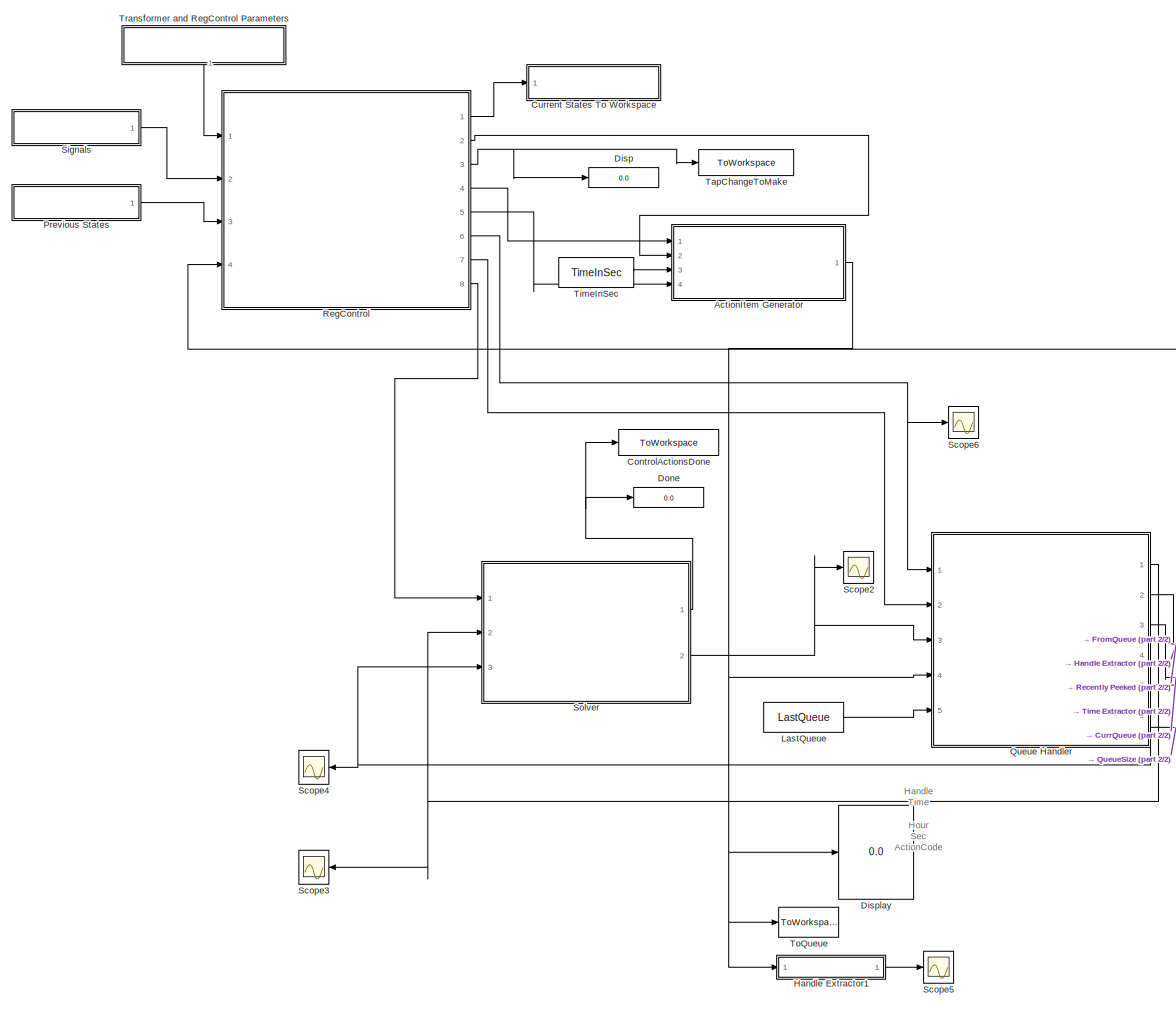
[diagram: root canvas - part 1/2, most of the canvas]
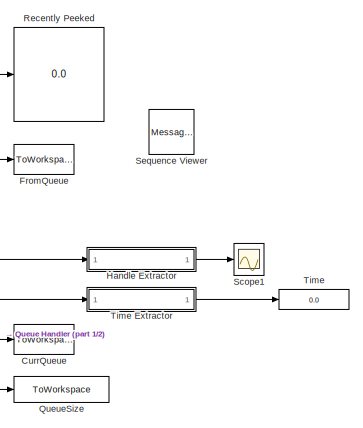
[diagram: root canvas - part 2/2, middle right region]
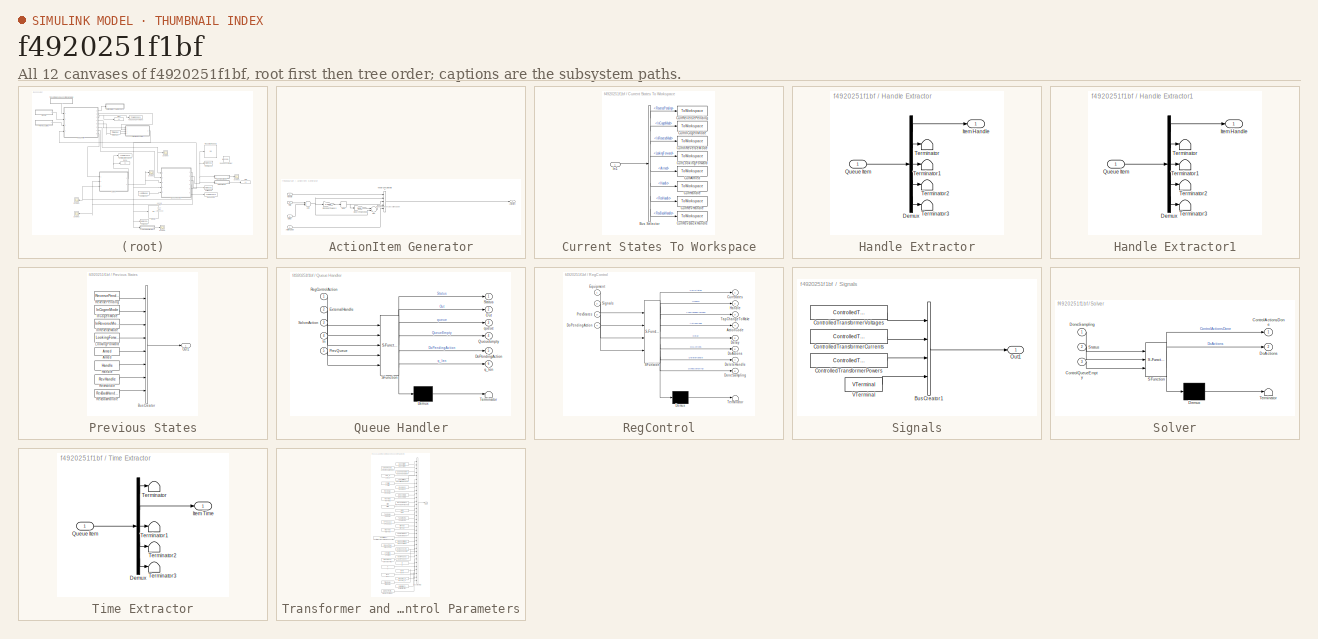
[diagram: thumbnail index - all 12 canvases of the model, root first then tree order]
MODEL slx_f4920251f1bf
KIND model
CONFIG AbsTol = auto
CONFIG EnableMultiTasking = off
CONFIG FixedStep = auto
CONFIG MaxStep = auto
CONFIG MinStep = auto
CONFIG RelTol = 1e-3
CONFIG SampleTimeConstraint = Unconstrained
CONFIG Solver = VariableStepDiscrete
CONFIG SolverName = VariableStepDiscrete
CONFIG StartTime = 0.0
CONFIG StopTime = 20.0
BLOCK [SubSystem] ActionItem Generator
  Ports = [4, 1]
  RequestExecContextInheritance = off
BLOCK [Inport] ActionItem Generator/ActionCode
  IconDisplay = Port number
BLOCK [Outport] ActionItem Generator/ActionItem
  IconDisplay = Port number
BLOCK [Sum] ActionItem Generator/Add
  InputSameDT = off
  OutDataTypeStr = Inherit: Inherit via internal rule
  Ports = [2, 1]
  SaturateOnIntegerOverflow = off
BLOCK [Inport] ActionItem Generator/Delay
  IconDisplay = Port number
  Port = 4
BLOCK [Inport] ActionItem Generator/Handle
  IconDisplay = Port number
  Port = 2
BLOCK [Rounding] ActionItem Generator/Hour
BLOCK [Gain] ActionItem Generator/HoursToSeconds
  Gain = 3600
  OutDataTypeStr = Inherit: Inherit via internal rule
  ParamDataTypeStr = Inherit: Inherit via internal rule
  SaturateOnIntegerOverflow = off
BLOCK [Sum] ActionItem Generator/Sec
  InputSameDT = off
  Inputs = -+
  OutDataTypeStr = Inherit: Inherit via internal rule
  Ports = [2, 1]
  SaturateOnIntegerOverflow = off
BLOCK [Gain] ActionItem Generator/SecondsToHours
  Gain = 1/3600
  OutDataTypeStr = Inherit: Inherit via internal rule
  ParamDataTypeStr = Inherit: Inherit via internal rule
  SaturateOnIntegerOverflow = off
BLOCK [Inport] ActionItem Generator/Time
  IconDisplay = Port number
  Port = 3
BLOCK [Concatenate] ActionItem Generator/Vector Concatenate1
  NumInputs = 5
  Ports = [5, 1]
BLOCK [ToWorkspace] ControlActionsDone
  FixptAsFi = on
  MaxDataPoints = inf
  Ports = [1]
  SampleTime = -1
  Save2DSignal = 3-D array (concatenate along third dimension)
  SaveFormat = Timeseries
  VariableName = ControlActionsDone
BLOCK [ToWorkspace] CurrQueue
  FixptAsFi = on
  MaxDataPoints = inf
  Ports = [1]
  SampleTime = 1
  Save2DSignal = 3-D array (concatenate along third dimension)
  SaveFormat = Structure With Time
  VariableName = CurrQueue
BLOCK [SubSystem] Current States To Workspace
  Ports = [1]
  RequestExecContextInheritance = off
BLOCK [BusSelector] Current States To Workspace/Bus Selector
  OutputAsBus = off
  OutputSignals = ReversePending,InCogenMode,InReverseMode,LookingForward,Armed,Handle,RevHandle,RevBackHandle
  Ports = [1, 8]
BLOCK [ToWorkspace] Current States To Workspace/CurrArmed
  FixptAsFi = on
  MaxDataPoints = 1
  Ports = [1]
  SampleTime = -1
  Save2DSignal = 3-D array (concatenate along third dimension)
  SaveFormat = Timeseries
  VariableName = CurrArmed
BLOCK [ToWorkspace] Current States To Workspace/CurrHandle
  FixptAsFi = on
  MaxDataPoints = 1
  Ports = [1]
  SampleTime = -1
  Save2DSignal = 3-D array (concatenate along third dimension)
  SaveFormat = Timeseries
  VariableName = CurrHandle
BLOCK [ToWorkspace] Current States To Workspace/CurrInCogenMode
  FixptAsFi = on
  MaxDataPoints = 1
  Ports = [1]
  SampleTime = -1
  Save2DSignal = 3-D array (concatenate along third dimension)
  SaveFormat = Timeseries
  VariableName = CurrInCogenMode
BLOCK [ToWorkspace] Current States To Workspace/CurrInReverseMode
  FixptAsFi = on
  MaxDataPoints = 1
  Ports = [1]
  SampleTime = -1
  Save2DSignal = 3-D array (concatenate along third dimension)
  SaveFormat = Timeseries
  VariableName = CurrInReverseMode
BLOCK [ToWorkspace] Current States To Workspace/CurrLookingForward
  FixptAsFi = on
  MaxDataPoints = 1
  Ports = [1]
  SampleTime = -1
  Save2DSignal = 3-D array (concatenate along third dimension)
  SaveFormat = Timeseries
  VariableName = CurrLookingForward
BLOCK [ToWorkspace] Current States To Workspace/CurrRevBackHandle
  FixptAsFi = on
  MaxDataPoints = 1
  Ports = [1]
  SampleTime = -1
  Save2DSignal = 3-D array (concatenate along third dimension)
  SaveFormat = Timeseries
  VariableName = CurrRevBackHandle
BLOCK [ToWorkspace] Current States To Workspace/CurrRevHandle
  FixptAsFi = on
  MaxDataPoints = 1
  Ports = [1]
  SampleTime = -1
  Save2DSignal = 3-D array (concatenate along third dimension)
  SaveFormat = Timeseries
  VariableName = CurrRevHandle
BLOCK [ToWorkspace] Current States To Workspace/CurrReversePending
  FixptAsFi = on
  MaxDataPoints = 1
  Ports = [1]
  SampleTime = -1
  Save2DSignal = 3-D array (concatenate along third dimension)
  SaveFormat = Timeseries
  VariableName = CurrReversePending
BLOCK [Inport] Current States To Workspace/In1
  IconDisplay = Port number
BLOCK [Display] Disp
  Decimation = 1
  Ports = [1]
BLOCK [Display] Display
  Decimation = 1
  Ports = [1]
BLOCK [Display] Done
  Decimation = 1
  Ports = [1]
BLOCK [ToWorkspace] FromQueue
  FixptAsFi = on
  MaxDataPoints = inf
  Ports = [1]
  SampleTime = 1
  Save2DSignal = 3-D array (concatenate along third dimension)
  SaveFormat = Structure With Time
  VariableName = FromQueue
BLOCK [SubSystem] Handle Extractor
  Ports = [1, 1]
  RequestExecContextInheritance = off
BLOCK [Demux] Handle Extractor/Demux
  DisplayOption = bar
  Outputs = 5
  Ports = [1, 5]
BLOCK [Outport] Handle Extractor/Item Handle
  IconDisplay = Port number
BLOCK [Inport] Handle Extractor/Queue Item
  IconDisplay = Port number
BLOCK [Terminator] Handle Extractor/Terminator
BLOCK [Terminator] Handle Extractor/Terminator1
BLOCK [Terminator] Handle Extractor/Terminator2
BLOCK [Terminator] Handle Extractor/Terminator3
BLOCK [SubSystem] Handle Extractor1
  Ports = [1, 1]
  RequestExecContextInheritance = off
BLOCK [Demux] Handle Extractor1/Demux
  DisplayOption = bar
  Outputs = 5
  Ports = [1, 5]
BLOCK [Outport] Handle Extractor1/Item Handle
  IconDisplay = Port number
BLOCK [Inport] Handle Extractor1/Queue Item
  IconDisplay = Port number
BLOCK [Terminator] Handle Extractor1/Terminator
BLOCK [Terminator] Handle Extractor1/Terminator1
BLOCK [Terminator] Handle Extractor1/Terminator2
BLOCK [Terminator] Handle Extractor1/Terminator3
BLOCK [Constant] LastQueue
  OutDataTypeStr = double
  Value = LastQueue
  VectorParams1D = off
BLOCK [SubSystem] Previous States
  Ports = [0, 1]
  RequestExecContextInheritance = off
BLOCK [Constant] Previous States/Armed
  Value = Armed
BLOCK [BusCreator] Previous States/Bus Creator
  DisplayOption = bar
  InheritFromInputs = off
  Inputs = 8
  OutDataTypeStr = Bus: StatesBus
  Ports = [8, 1]
BLOCK [Constant] Previous States/Handle
  Value = Handle
BLOCK [Constant] Previous States/InCogenMode
  Value = InCogenMode
BLOCK [Constant] Previous States/InReverseMode
  Value = InReverseMode
BLOCK [Constant] Previous States/LookingForward
  Value = LookingForward
BLOCK [Outport] Previous States/Out1
  IconDisplay = Port number
BLOCK [Constant] Previous States/RevBackHandle
  Value = RevBackHandle
BLOCK [Constant] Previous States/RevHandle
  Value = RevHandle
BLOCK [Constant] Previous States/ReversePending
  Value = ReversePending
BLOCK [SubSystem] Queue Handler
  ErrorFcn = Stateflow.Translate.translate
  PermitHierarchicalResolution = ExplicitOnly
  Ports = [5, 6]
  RequestExecContextInheritance = off
  SFBlockType = Chart
  TreatAsAtomicUnit = on
BLOCK [Demux] Queue Handler/ Demux 
  Outputs = 1
  Ports = [1, 1]
BLOCK [S-Function] Queue Handler/ SFunction 
  EnableBusSupport = on
  FunctionName = sf_sfun
  InputPortMessageModes = m,n,m,n,n
  OutputPortMessageModes = n,m,n,n,m,m,n
  Parameters = 0,1,2,5,false,false;
  PortCounts = [5 7]
  Ports = [5, 7]
  SFcnIsStateOwnerBlock = off
  SFunctionDeploymentMode = off
  Tag = Stateflow S-Function regcontrol_1ph 5
BLOCK [Terminator] Queue Handler/ Terminator 
BLOCK [Outport] Queue Handler/DoPendingAction
  IconDisplay = Port number
  Port = 5
BLOCK [Inport] Queue Handler/ExternalHandle
  IconDisplay = Port number
  Port = 2
BLOCK [Inport] Queue Handler/In
  IconDisplay = Port number
  Port = 4
BLOCK [Outport] Queue Handler/Out
  IconDisplay = Port number
  Port = 2
BLOCK [Inport] Queue Handler/PrevQueue
  IconDisplay = Port number
  Port = 5
BLOCK [Outport] Queue Handler/QueueEmpty
  IconDisplay = Port number
  Port = 4
BLOCK [Inport] Queue Handler/RegControlAction
  IconDisplay = Port number
BLOCK [Inport] Queue Handler/SolverAction
  IconDisplay = Port number
  Port = 3
BLOCK [Outport] Queue Handler/Status
  IconDisplay = Port number
BLOCK [Outport] Queue Handler/q_len
  IconDisplay = Port number
  Port = 6
BLOCK [Outport] Queue Handler/queue
  IconDisplay = Port number
  Port = 3
BLOCK [ToWorkspace] QueueSize
  FixptAsFi = on
  MaxDataPoints = 1
  Ports = [1]
  SampleTime = -1
  Save2DSignal = 3-D array (concatenate along third dimension)
  SaveFormat = Timeseries
  VariableName = QueueSize
BLOCK [Display] Recently Peeked
  Decimation = 1
  Ports = [1]
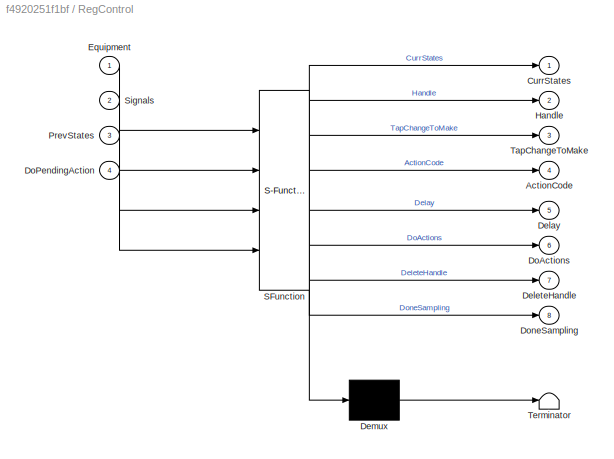
BLOCK [SubSystem] RegControl
  ErrorFcn = Stateflow.Translate.translate
  PermitHierarchicalResolution = ExplicitOnly
  Ports = [4, 8]
  RequestExecContextInheritance = off
  SFBlockType = Chart
  TreatAsAtomicUnit = on
BLOCK [Demux] RegControl/ Demux 
  Outputs = 1
  Ports = [1, 1]
BLOCK [S-Function] RegControl/ SFunction 
  EnableBusSupport = on
  FunctionName = sf_sfun
  InputPortMessageModes = n,n,n,m
  OutputPortMessageModes = n,n,n,n,n,n,m,n,m
  Parameters = 0,1.0e-12,120,3,60,BaseVoltage,complex(0),false,true,uint8(1),uint8(16)
  PortCounts = [4 9]
  Ports = [4, 9]
  SFcnIsStateOwnerBlock = off
  SFunctionDeploymentMode = off
  Tag = Stateflow S-Function regcontrol_1ph 1
BLOCK [Terminator] RegControl/ Terminator 
BLOCK [Outport] RegControl/ActionCode
  IconDisplay = Port number
  Port = 4
BLOCK [Outport] RegControl/CurrStates
  IconDisplay = Port number
BLOCK [Outport] RegControl/Delay
  IconDisplay = Port number
  Port = 5
BLOCK [Outport] RegControl/DeleteHandle
  IconDisplay = Port number
  Port = 7
BLOCK [Outport] RegControl/DoActions
  IconDisplay = Port number
  Port = 6
BLOCK [Inport] RegControl/DoPendingAction
  IconDisplay = Port number
  Port = 4
BLOCK [Outport] RegControl/DoneSampling
  IconDisplay = Port number
  Port = 8
BLOCK [Inport] RegControl/Equipment
  IconDisplay = Port number
BLOCK [Outport] RegControl/Handle
  IconDisplay = Port number
  Port = 2
BLOCK [Inport] RegControl/PrevStates
  IconDisplay = Port number
  Port = 3
BLOCK [Inport] RegControl/Signals
  IconDisplay = Port number
  Port = 2
BLOCK [Outport] RegControl/TapChangeToMake
  IconDisplay = Port number
  Port = 3
BLOCK [Scope] Scope1
  Floating = off
  NumInputPorts = 1
  Ports = [1]
  ScopeSpecificationString = Simulink.scopes.TimeScopeBlockCfg('CurrentConfiguration', extmgr.ConfigurationSet(extmgr.Configuration('Core','General UI',true),extmgr.Configuration('Core','Source UI',true),extmgr.Configuration('Sources','WiredSimulink',true,'DataLoggingVariableName','ScopeData2'),extmgr.Configuration('Visuals','Time Domain',true,'SerializedDisplays',{struct('MinYLimReal','-1.00000','MaxYLimReal','1.00000','YLab...<+1403ch>
BLOCK [Scope] Scope2
  Floating = off
  NumInputPorts = 1
  Ports = [1]
  ScopeSpecificationString = Simulink.scopes.TimeScopeBlockCfg('CurrentConfiguration', extmgr.ConfigurationSet(extmgr.Configuration('Core','General UI',true),extmgr.Configuration('Core','Source UI',true),extmgr.Configuration('Sources','WiredSimulink',true,'DataLoggingVariableName','ScopeData3'),extmgr.Configuration('Visuals','Time Domain',true,'SerializedDisplays',{struct('MinYLimReal','-0.875','MaxYLimReal','7.875','YLabelRe...<+1416ch>
BLOCK [Scope] Scope3
  Floating = off
  NumInputPorts = 1
  Ports = [1]
  ScopeSpecificationString = Simulink.scopes.TimeScopeBlockCfg('CurrentConfiguration', extmgr.ConfigurationSet(extmgr.Configuration('Core','General UI',true),extmgr.Configuration('Core','Source UI',true),extmgr.Configuration('Sources','WiredSimulink',true,'DataLoggingVariableName','ScopeData1'),extmgr.Configuration('Visuals','Time Domain',true,'SerializedDisplays',{struct('MinYLimReal','-0.25','MaxYLimReal','2.25','YLabelReal...<+1419ch>
BLOCK [Scope] Scope4
  Floating = off
  NumInputPorts = 1
  Ports = [1]
  ScopeSpecificationString = Simulink.scopes.TimeScopeBlockCfg('CurrentConfiguration', extmgr.ConfigurationSet(extmgr.Configuration('Core','General UI',true),extmgr.Configuration('Core','Source UI',true),extmgr.Configuration('Sources','WiredSimulink',true,'DataLoggingVariableName','ScopeData2'),extmgr.Configuration('Visuals','Time Domain',true,'SerializedDisplays',{struct('MinYLimReal','-0.875','MaxYLimReal','7.875','YLabelRe...<+1422ch>
BLOCK [Scope] Scope5
  Floating = off
  NumInputPorts = 1
  Ports = [1]
  ScopeSpecificationString = Simulink.scopes.TimeScopeBlockCfg('CurrentConfiguration', extmgr.ConfigurationSet(extmgr.Configuration('Core','General UI',true),extmgr.Configuration('Core','Source UI',true),extmgr.Configuration('Sources','WiredSimulink',true,'DataLoggingVariableName','ScopeData1'),extmgr.Configuration('Visuals','Time Domain',true,'SerializedDisplays',{struct('MinYLimReal','0.9','MaxYLimReal','1.1','YLabelReal','...<+1370ch>
BLOCK [Scope] Scope6
  Floating = off
  NumInputPorts = 1
  Ports = [1]
  ScopeSpecificationString = Simulink.scopes.TimeScopeBlockCfg('CurrentConfiguration', extmgr.ConfigurationSet(extmgr.Configuration('Core','General UI',true),extmgr.Configuration('Core','Source UI',true),extmgr.Configuration('Sources','WiredSimulink',true,'DataLoggingVariableName','ScopeData1'),extmgr.Configuration('Visuals','Time Domain',true,'SerializedDisplays',{struct('MinYLimReal','-0.125','MaxYLimReal','1.125','YLabelRe...<+1419ch>
BLOCK [MessageViewer] Sequence Viewer
BLOCK [SubSystem] Signals
  Ports = [0, 1]
  RequestExecContextInheritance = off
BLOCK [BusCreator] Signals/Bus Creator1
  DisplayOption = bar
  InheritFromInputs = off
  Inputs = 4
  OutDataTypeStr = Bus: SignalBus
  Ports = [4, 1]
BLOCK [Constant] Signals/ControlledTransformerCurrents
  Value = ControlledTransformerCurrents
BLOCK [Constant] Signals/ControlledTransformerPowers
  Value = ControlledTransformerPowers
BLOCK [Constant] Signals/ControlledTransformerVoltages
  Value = ControlledTransformerVoltages
BLOCK [Outport] Signals/Out1
  IconDisplay = Port number
BLOCK [Constant] Signals/VTerminal
  Value = VTerminal
BLOCK [SubSystem] Solver
  ErrorFcn = Stateflow.Translate.translate
  PermitHierarchicalResolution = ExplicitOnly
  Ports = [3, 2]
  RequestExecContextInheritance = off
  SFBlockType = Chart
  TreatAsAtomicUnit = on
BLOCK [Demux] Solver/ Demux 
  Outputs = 1
  Ports = [1, 1]
BLOCK [S-Function] Solver/ SFunction 
  EnableBusSupport = on
  FunctionName = sf_sfun
  InputPortMessageModes = m,m,m
  OutputPortMessageModes = n,n,m
  Parameters = false
  PortCounts = [3 3]
  Ports = [3, 3]
  SFcnIsStateOwnerBlock = off
  SFunctionDeploymentMode = off
  Tag = Stateflow S-Function regcontrol_1ph 3
BLOCK [Terminator] Solver/ Terminator 
BLOCK [Outport] Solver/ControlActionsDone
  IconDisplay = Port number
BLOCK [Inport] Solver/ControlQueueEmpty
  IconDisplay = Port number
  Port = 3
BLOCK [Outport] Solver/DoActions
  IconDisplay = Port number
  Port = 2
BLOCK [Inport] Solver/DoneSampling
  IconDisplay = Port number
BLOCK [Inport] Solver/Status
  IconDisplay = Port number
  Port = 2
BLOCK [ToWorkspace] TapChangeToMake
  FixptAsFi = on
  MaxDataPoints = 1
  Ports = [1]
  SampleTime = -1
  Save2DSignal = 3-D array (concatenate along third dimension)
  SaveFormat = Timeseries
  VariableName = TapChangeToMake
BLOCK [Display] Time
  Decimation = 1
  Ports = [1]
BLOCK [SubSystem] Time Extractor
  Ports = [1, 1]
  RequestExecContextInheritance = off
BLOCK [Demux] Time Extractor/Demux
  DisplayOption = bar
  Outputs = 5
  Ports = [1, 5]
BLOCK [Outport] Time Extractor/Item Time
  IconDisplay = Port number
BLOCK [Inport] Time Extractor/Queue Item
  IconDisplay = Port number
BLOCK [Terminator] Time Extractor/Terminator
BLOCK [Terminator] Time Extractor/Terminator1
BLOCK [Terminator] Time Extractor/Terminator2
BLOCK [Terminator] Time Extractor/Terminator3
BLOCK [Constant] TimeInSec
  OutDataTypeStr = double
  Value = TimeInSec
BLOCK [ToWorkspace] ToQueue
  FixptAsFi = on
  MaxDataPoints = 1
  Ports = [1]
  SampleTime = 1
  Save2DSignal = 3-D array (concatenate along third dimension)
  SaveFormat = Structure With Time
  VariableName = ToQueue
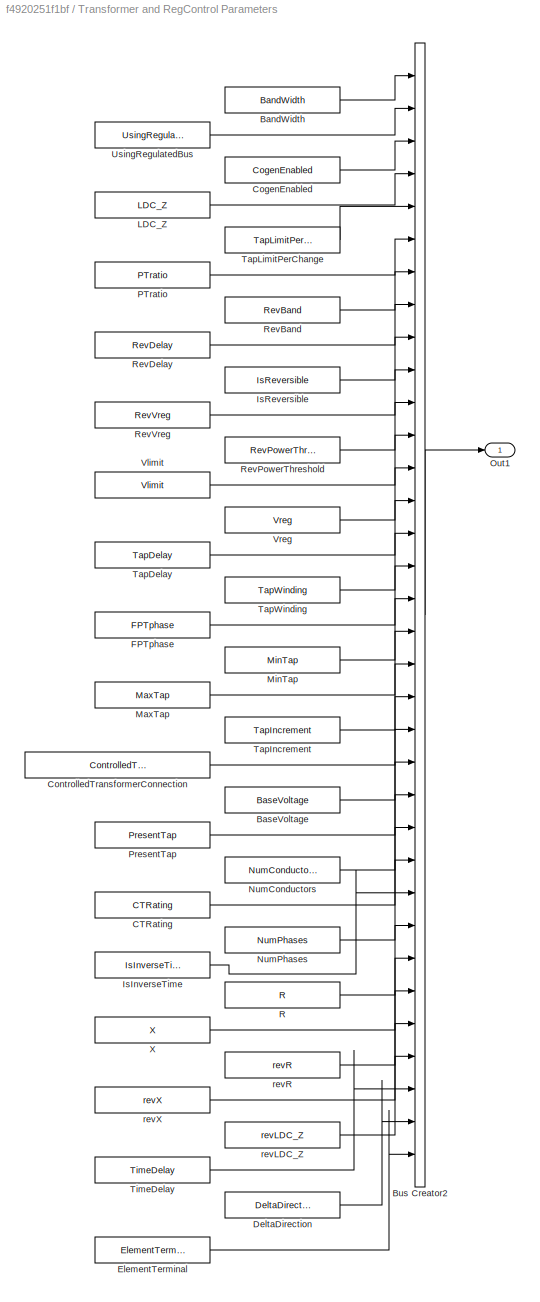
BLOCK [SubSystem] Transformer and RegControl Parameters
  Ports = [0, 1]
  RequestExecContextInheritance = off
BLOCK [Constant] Transformer and RegControl Parameters/BandWidth
  Value = BandWidth
BLOCK [Constant] Transformer and RegControl Parameters/BaseVoltage
  Value = BaseVoltage
BLOCK [BusCreator] Transformer and RegControl Parameters/Bus Creator2
  DisplayOption = bar
  InheritFromInputs = off
  Inputs = 34
  OutDataTypeStr = Bus: EquipmentBus
  Ports = [34, 1]
BLOCK [Constant] Transformer and RegControl Parameters/CTRating
  Value = CTRating
BLOCK [Constant] Transformer and RegControl Parameters/CogenEnabled
  Value = CogenEnabled
BLOCK [Constant] Transformer and RegControl Parameters/ControlledTransformerConnection
  Value = ControlledTransformerConnection
BLOCK [Constant] Transformer and RegControl Parameters/DeltaDirection
  Value = DeltaDirection
BLOCK [Constant] Transformer and RegControl Parameters/ElementTerminal
  Value = ElementTerminal
BLOCK [Constant] Transformer and RegControl Parameters/FPTphase
  Value = FPTphase
BLOCK [Constant] Transformer and RegControl Parameters/IsInverseTime
  Value = IsInverseTime
BLOCK [Constant] Transformer and RegControl Parameters/IsReversible
  Value = IsReversible
BLOCK [Constant] Transformer and RegControl Parameters/LDC_Z
  Value = LDC_Z
BLOCK [Constant] Transformer and RegControl Parameters/MaxTap
  Value = MaxTap
BLOCK [Constant] Transformer and RegControl Parameters/MinTap
  Value = MinTap
BLOCK [Constant] Transformer and RegControl Parameters/NumConductors
  Value = NumConductors
BLOCK [Constant] Transformer and RegControl Parameters/NumPhases
  Value = NumPhases
BLOCK [Outport] Transformer and RegControl Parameters/Out1
  IconDisplay = Port number
BLOCK [Constant] Transformer and RegControl Parameters/PTratio
  Value = PTratio
BLOCK [Constant] Transformer and RegControl Parameters/PresentTap
  Value = PresentTap
BLOCK [Constant] Transformer and RegControl Parameters/R
  Value = R
BLOCK [Constant] Transformer and RegControl Parameters/RevBand
  Value = RevBand
BLOCK [Constant] Transformer and RegControl Parameters/RevDelay
  Value = RevDelay
BLOCK [Constant] Transformer and RegControl Parameters/RevPowerThreshold
  Value = RevPowerThreshold
BLOCK [Constant] Transformer and RegControl Parameters/RevVreg
  Value = RevVreg
BLOCK [Constant] Transformer and RegControl Parameters/TapDelay
  Value = TapDelay
BLOCK [Constant] Transformer and RegControl Parameters/TapIncrement
  Value = TapIncrement
BLOCK [Constant] Transformer and RegControl Parameters/TapLimitPerChange
  Value = TapLimitPerChange
BLOCK [Constant] Transformer and RegControl Parameters/TapWinding
  Value = TapWinding
BLOCK [Constant] Transformer and RegControl Parameters/TimeDelay
  Value = TimeDelay
BLOCK [Constant] Transformer and RegControl Parameters/UsingRegulatedBus
  Value = UsingRegulatedBus
BLOCK [Constant] Transformer and RegControl Parameters/Vlimit
  Value = Vlimit
BLOCK [Constant] Transformer and RegControl Parameters/Vreg
  Value = Vreg
BLOCK [Constant] Transformer and RegControl Parameters/X
  Value = X
BLOCK [Constant] Transformer and RegControl Parameters/revLDC_Z
  Value = revLDC_Z
BLOCK [Constant] Transformer and RegControl Parameters/revR
  Value = revR
BLOCK [Constant] Transformer and RegControl Parameters/revX
  Value = revX
ANNOTATION (root): Handle Time Hour Sec ActionCode
ANNOTATION ActionItem Generator: [Handle Time Hour Sec ActionCode]'
LINE ActionItem Generator/ActionCode:1 -> ActionItem Generator/Vector Concatenate1:5
NET ActionItem Generator/Add:1 -> ActionItem Generator/Sec:2, ActionItem Generator/SecondsToHours:1, ActionItem Generator/Vector Concatenate1:2
LINE ActionItem Generator/Delay:1 -> ActionItem Generator/Add:2
LINE ActionItem Generator/Handle:1 -> ActionItem Generator/Vector Concatenate1:1
NET ActionItem Generator/Hour:1 -> ActionItem Generator/HoursToSeconds:1, ActionItem Generator/Vector Concatenate1:3
LINE ActionItem Generator/HoursToSeconds:1 -> ActionItem Generator/Sec:1
LINE ActionItem Generator/Sec:1 -> ActionItem Generator/Vector Concatenate1:4
LINE ActionItem Generator/SecondsToHours:1 -> ActionItem Generator/Hour:1
LINE ActionItem Generator/Time:1 -> ActionItem Generator/Add:1
LINE ActionItem Generator/Vector Concatenate1:1 -> ActionItem Generator/ActionItem:1
NET ActionItem Generator:1 -> Display:1, Handle Extractor1:1, Queue Handler:4, ToQueue:1
LINE Current States To Workspace/Bus Selector:1 -> Current States To Workspace/CurrReversePending:1
LINE Current States To Workspace/Bus Selector:2 -> Current States To Workspace/CurrInCogenMode:1
LINE Current States To Workspace/Bus Selector:3 -> Current States To Workspace/CurrInReverseMode:1
LINE Current States To Workspace/Bus Selector:4 -> Current States To Workspace/CurrLookingForward:1
LINE Current States To Workspace/Bus Selector:5 -> Current States To Workspace/CurrArmed:1
LINE Current States To Workspace/Bus Selector:6 -> Current States To Workspace/CurrHandle:1
LINE Current States To Workspace/Bus Selector:7 -> Current States To Workspace/CurrRevHandle:1
LINE Current States To Workspace/Bus Selector:8 -> Current States To Workspace/CurrRevBackHandle:1
LINE Current States To Workspace/In1:1 -> Current States To Workspace/Bus Selector:1
LINE Handle Extractor/Demux:1 -> Handle Extractor/Item Handle:1
LINE Handle Extractor/Demux:2 -> Handle Extractor/Terminator:1
LINE Handle Extractor/Demux:3 -> Handle Extractor/Terminator1:1
LINE Handle Extractor/Demux:4 -> Handle Extractor/Terminator2:1
LINE Handle Extractor/Demux:5 -> Handle Extractor/Terminator3:1
LINE Handle Extractor/Queue Item:1 -> Handle Extractor/Demux:1
LINE Handle Extractor1/Demux:1 -> Handle Extractor1/Item Handle:1
LINE Handle Extractor1/Demux:2 -> Handle Extractor1/Terminator:1
LINE Handle Extractor1/Demux:3 -> Handle Extractor1/Terminator1:1
LINE Handle Extractor1/Demux:4 -> Handle Extractor1/Terminator2:1
LINE Handle Extractor1/Demux:5 -> Handle Extractor1/Terminator3:1
LINE Handle Extractor1/Queue Item:1 -> Handle Extractor1/Demux:1
LINE Handle Extractor1:1 -> Scope5:1
LINE Handle Extractor:1 -> Scope1:1
LINE LastQueue:1 -> Queue Handler:5
LINE Previous States/Armed:1 -> Previous States/Bus Creator:5
LINE Previous States/Bus Creator:1 -> Previous States/Out1:1
LINE Previous States/Handle:1 -> Previous States/Bus Creator:6
LINE Previous States/InCogenMode:1 -> Previous States/Bus Creator:2
LINE Previous States/InReverseMode:1 -> Previous States/Bus Creator:3
LINE Previous States/LookingForward:1 -> Previous States/Bus Creator:4
LINE Previous States/RevBackHandle:1 -> Previous States/Bus Creator:8
LINE Previous States/RevHandle:1 -> Previous States/Bus Creator:7
LINE Previous States/ReversePending:1 -> Previous States/Bus Creator:1
LINE Previous States:1 -> RegControl:3
NET Queue Handler:1 -> Scope3:1, Solver:2
NET Queue Handler:2 -> FromQueue:1, Handle Extractor:1, Recently Peeked:1, Time Extractor:1
LINE Queue Handler:3 -> CurrQueue:1
NET Queue Handler:4 -> Scope4:1, Solver:3
LINE Queue Handler:5 -> RegControl:4
LINE Queue Handler:6 -> QueueSize:1
LINE RegControl:1 -> Current States To Workspace:1
LINE RegControl:2 -> ActionItem Generator:2
NET RegControl:3 -> Disp:1, TapChangeToMake:1
LINE RegControl:4 -> ActionItem Generator:1
LINE RegControl:5 -> ActionItem Generator:4
NET RegControl:6 -> Queue Handler:1, Scope6:1
LINE RegControl:7 -> Queue Handler:2
LINE RegControl:8 -> Solver:1
LINE Signals/Bus Creator1:1 -> Signals/Out1:1
LINE Signals/ControlledTransformerCurrents:1 -> Signals/Bus Creator1:2
LINE Signals/ControlledTransformerPowers:1 -> Signals/Bus Creator1:3
LINE Signals/ControlledTransformerVoltages:1 -> Signals/Bus Creator1:1
LINE Signals/VTerminal:1 -> Signals/Bus Creator1:4
LINE Signals:1 -> RegControl:2
NET Solver:1 -> ControlActionsDone:1, Done:1
NET Solver:2 -> Queue Handler:3, Scope2:1
LINE Time Extractor/Demux:1 -> Time Extractor/Terminator:1
LINE Time Extractor/Demux:2 -> Time Extractor/Item Time:1
LINE Time Extractor/Demux:3 -> Time Extractor/Terminator1:1
LINE Time Extractor/Demux:4 -> Time Extractor/Terminator2:1
LINE Time Extractor/Demux:5 -> Time Extractor/Terminator3:1
LINE Time Extractor/Queue Item:1 -> Time Extractor/Demux:1
LINE Time Extractor:1 -> Time:1
LINE TimeInSec:1 -> ActionItem Generator:3
LINE Transformer and RegControl Parameters/BandWidth:1 -> Transformer and RegControl Parameters/Bus Creator2:1
LINE Transformer and RegControl Parameters/BaseVoltage:1 -> Transformer and RegControl Parameters/Bus Creator2:21
LINE Transformer and RegControl Parameters/Bus Creator2:1 -> Transformer and RegControl Parameters/Out1:1
LINE Transformer and RegControl Parameters/CTRating:1 -> Transformer and RegControl Parameters/Bus Creator2:24
LINE Transformer and RegControl Parameters/CogenEnabled:1 -> Transformer and RegControl Parameters/Bus Creator2:3
LINE Transformer and RegControl Parameters/ControlledTransformerConnection:1 -> Transformer and RegControl Parameters/Bus Creator2:20
LINE Transformer and RegControl Parameters/DeltaDirection:1 -> Transformer and RegControl Parameters/Bus Creator2:33
LINE Transformer and RegControl Parameters/ElementTerminal:1 -> Transformer and RegControl Parameters/Bus Creator2:34
LINE Transformer and RegControl Parameters/FPTphase:1 -> Transformer and RegControl Parameters/Bus Creator2:16
LINE Transformer and RegControl Parameters/IsInverseTime:1 -> Transformer and RegControl Parameters/Bus Creator2:26
LINE Transformer and RegControl Parameters/IsReversible:1 -> Transformer and RegControl Parameters/Bus Creator2:9
LINE Transformer and RegControl Parameters/LDC_Z:1 -> Transformer and RegControl Parameters/Bus Creator2:4
LINE Transformer and RegControl Parameters/MaxTap:1 -> Transformer and RegControl Parameters/Bus Creator2:18
LINE Transformer and RegControl Parameters/MinTap:1 -> Transformer and RegControl Parameters/Bus Creator2:17
LINE Transformer and RegControl Parameters/NumConductors:1 -> Transformer and RegControl Parameters/Bus Creator2:23
LINE Transformer and RegControl Parameters/NumPhases:1 -> Transformer and RegControl Parameters/Bus Creator2:25
LINE Transformer and RegControl Parameters/PTratio:1 -> Transformer and RegControl Parameters/Bus Creator2:6
LINE Transformer and RegControl Parameters/PresentTap:1 -> Transformer and RegControl Parameters/Bus Creator2:22
LINE Transformer and RegControl Parameters/R:1 -> Transformer and RegControl Parameters/Bus Creator2:27
LINE Transformer and RegControl Parameters/RevBand:1 -> Transformer and RegControl Parameters/Bus Creator2:7
LINE Transformer and RegControl Parameters/RevDelay:1 -> Transformer and RegControl Parameters/Bus Creator2:8
LINE Transformer and RegControl Parameters/RevPowerThreshold:1 -> Transformer and RegControl Parameters/Bus Creator2:11
LINE Transformer and RegControl Parameters/RevVreg:1 -> Transformer and RegControl Parameters/Bus Creator2:10
LINE Transformer and RegControl Parameters/TapDelay:1 -> Transformer and RegControl Parameters/Bus Creator2:14
LINE Transformer and RegControl Parameters/TapIncrement:1 -> Transformer and RegControl Parameters/Bus Creator2:19
LINE Transformer and RegControl Parameters/TapLimitPerChange:1 -> Transformer and RegControl Parameters/Bus Creator2:5
LINE Transformer and RegControl Parameters/TapWinding:1 -> Transformer and RegControl Parameters/Bus Creator2:15
LINE Transformer and RegControl Parameters/TimeDelay:1 -> Transformer and RegControl Parameters/Bus Creator2:32
LINE Transformer and RegControl Parameters/UsingRegulatedBus:1 -> Transformer and RegControl Parameters/Bus Creator2:2
LINE Transformer and RegControl Parameters/Vlimit:1 -> Transformer and RegControl Parameters/Bus Creator2:12
LINE Transformer and RegControl Parameters/Vreg:1 -> Transformer and RegControl Parameters/Bus Creator2:13
LINE Transformer and RegControl Parameters/X:1 -> Transformer and RegControl Parameters/Bus Creator2:28
LINE Transformer and RegControl Parameters/revLDC_Z:1 -> Transformer and RegControl Parameters/Bus Creator2:31
LINE Transformer and RegControl Parameters/revR:1 -> Transformer and RegControl Parameters/Bus Creator2:29
LINE Transformer and RegControl Parameters/revX:1 -> Transformer and RegControl Parameters/Bus Creator2:30
LINE Transformer and RegControl Parameters:1 -> RegControl:1
note: NET lines group one-source signal fan-out (src -> all destinations, sorted); 1:1 wires keep LINE
CHART RegControl states=54 transitions=216
  STATE_LABEL 'MakingTapChange'
  STATE_LABEL 'StaticTapChange'
  STATE_LABEL '{TapChangeToMake = AtLeastOneTap(LocalPendingTapChange, TapIncrement);\n% reset to no change = change - 1 program will determin if another is needed:\nLocalPendingTapChange = 0; \nUpdateArmed(false);}'
  STATE_LABEL 'Finished\nen: EXIT_TAPCHANGE = true;'
  STATE_LABEL '% Check to make sure control has not reset:\n[LocalPendingTapChange == 0]'
  STATE_LABEL '{UpdateArmed(false);}'
  STATE_LABEL '[ControlMode == ControlModes.STATIC]'
  STATE_LABEL 'StaticTapChange'
  STATE_LABEL '{TapChangeToMake = AtLeastOneTap(LocalPendingTapChange, TapIncrement);\n% reset to no change = change - 1 program will determin if another is needed:\nLocalPendingTapChange = 0; \nUpdateArmed(false);}'
  STATE_LABEL 'Finished\nen: EXIT_TAPCHANGE = true;'
  STATE_LABEL 'Sampling\n'
  STATE_LABEL 'DetermineReversePendingLookingForward'
  STATE_LABEL 'CorrectFalseReversePending\nen:\nif FwdPower < (-1*RevPowerThreshold)\n    ReversePending = true;\n    DeleteHandle = ...\n        Push(ActionCodes.ACTION_REVERSE, ...\n        RevDelay);\n    RevHandle = DeleteHandle;\nend'
  STATE_LABEL 'CorrectTrueReversePending\nen:\nif FwdPower >= (-1*RevPowerThreshold)\n    DeleteHandle = RevHandle;\n    ReversePending = false;\n    DoActions.data = QueueActions.DELETE;\n    send(DoActions);\n    RevHandle = 0;\nend'
  STATE_LABEL 'Finished\nen: GET_VOLTAGE = true;'
  STATE_LABEL '{FwdPower = ...\n-1*real( sum( ControlledTransformerPower((TerminalOffset+1):...\n(TerminalOffset+NumConductors)) ) );}\n% Should we reverse?'
  STATE_LABEL '[~ReversePending]'
  STATE_LABEL '[ReversePending]'
  STATE_LABEL 'DetermineReversePendingLookingReverseOrCogen'
  STATE_LABEL 'CorrectFalseReversePending\nen:\nif FwdPower > RevPowerThreshold\n    ReversePending = true;\n    % push Reverse Back action to switch back:\n    DeleteHandle = ...\n        Push(ActionCodes.ACTION_REVERSE, ...\n        RevDelay);\n    RevBackHandle = DeleteHandle;\nend'
  STATE_LABEL 'CorrectTrueReversePending\nen:\nif FwdPower <= RevPowerThreshold\n    DeleteHandle = RevBackHandle;\n    ReversePending = false;\n    % delete Reverse Back action:\n    DoActions.data = QueueActions.DELETE;\n    send(DoActions);\n    RevBackHandle = 0;\nend'
  STATE_LABEL 'Finished\nen: REV_NEUTRAL = true;'
  STATE_LABEL '{FwdPower = ...\n-1*real( sum( ControlledTransformerPower((TerminalOffset+1):...\n(TerminalOffset+NumConductors)) ) );}\n% If reversed, check if power is back in forward direction'
  STATE_LABEL '[~ReversePending]'
  STATE_LABEL '[ReversePending]'
  STATE_LABEL 'ReverseNeutralCase'
  STATE_LABEL 'Finished\nen:\nGET_VOLTAGE = true;'
  STATE_LABEL 'ReverseNeutralTapChange\nen:\nPendingTapChange = ...\n    round( (1.0 - double(TapWinding)) / TapIncrement ) * TapIncrement;\nif PendingTapChange ~= 0.0 && ~Armed\n    Push(ActionCodes.ACTION_TAPCHANGE, TapDelay);\n    Armed = true;\nend'
  STATE_LABEL 'Exiting\nen: EXIT = true;'
  STATE_LABEL '% tap change not specified as needed:\n[~Armed]'
  STATE_LABEL '{PendingTapChange = 0.0;}'
  STATE_LABEL '[abs(PresentTap - 1.0) < EPSILON]'
  STATE_LABEL 'GetVoltage\nen:\nif UsingRegulatedBus\n    GetRegulatedBusVoltage; % stores voltages in VBuffer\nelse\n    VBuffer = ControlledTransformerWindingVoltages((TerminalOffset+1):(TerminalOffset+NumPhases));\nend\nVcontrol = GetControlVoltage; % operates on VBuffer'
  STATE_LABEL 'DetermineVlocalbus'
  STATE_LABEL 'Finished\nen: GET_VOLTAGEWLDC = true;'
  STATE_LABEL '% Voltage limit for bus connected to regulated winding; default = 0.0 (inactive)\n[VlimitActive]'
  STATE_LABEL '{Vlocalbus = 0.0;}'
  STATE_LABEL '% when controlled transformer is different from LDC PTransformer\n[UsingRegulatedBus]'
  STATE_LABEL '% controlled transformer is\n% the LDC PTransformer\n{Vlocalbus = abs(Vcontrol);}'
  STATE_LABEL '{%ControlledTransformer.GetWindingVoltages(ElementTerminal, VBuffer);\nVlocalbus = abs( VBuffer(1) / PTRatio );}'
CHART Solver states=7 transitions=9
  STATE_LABEL 'ControlFlow'
  STATE_LABEL 'Asleep'
  STATE_LABEL '<!DOCTYPE HTML PUBLIC "-//W3C//DTD HTML 4.0//EN" "http://www.w3.org/TR/REC-html40/strict.dtd">\n<html><head><meta name="qrichtext" content="1" /><style type="text/css">\np, li { white-space: pre-wrap; }\n</style></head><body style=" font-family:\'Helvetica\'; font-size:12px; font-weight:400; font-style:normal;">\n<p style=" margin-top:0px; margin-bottom:0px; margin-left:0px; margin-right:0px; -qt-block-...<+545ch>'
  STATE_LABEL 'SolverFinished'
  STATE_LABEL 'DoneSampling'
  STATE_LABEL '[LocalControlQueueEmpty]\n% execute nearest set of control actions, but leave time where it is'
  STATE_LABEL '{DoActions.data = QueueActions.DO_NEAREST_ACTIONS;\nsend(DoActions);\n% ignores time advancement\n}'
  STATE_LABEL '{ControlActionsDone = true;}'
  STATE_LABEL 'Asleep'
  STATE_LABEL '<!DOCTYPE HTML PUBLIC "-//W3C//DTD HTML 4.0//EN" "http://www.w3.org/TR/REC-html40/strict.dtd">\n<html><head><meta name="qrichtext" content="1" /><style type="text/css">\np, li { white-space: pre-wrap; }\n</style></head><body style=" font-family:\'Helvetica\'; font-size:12px; font-weight:400; font-style:normal;">\n<p style=" margin-top:0px; margin-bottom:0px; margin-left:0px; margin-right:0px; -qt-block-...<+545ch>'
  STATE_LABEL 'SolverFinished'
  STATE_LABEL 'CheckIfEmpty'
  STATE_LABEL 'Asleep'
  STATE_LABEL 'QueueEmptyCase\nen: LocalControlQueueEmpty = true;'
  STATE_LABEL 'ControlQueueEmpty'
  STATE_LABEL 'Asleep'
  STATE_LABEL 'QueueEmptyCase\nen: LocalControlQueueEmpty = true;'
CHART Queue Handler states=29 transitions=110
  STATE_LABEL 'Executive'
  STATE_LABEL 'Asleep\nex: Status.data = Statuses.READY; % reset status\n INTERNAL_DONE = false;\n EXECUTIVE_DONE = false;'
  STATE_LABEL 'DoNearestActions'
  STATE_LABEL 'WaitOnPeek\nen: send(QUEUE_PEEK, Internal);'
  STATE_LABEL 'WaitOnPop\nen: send(QUEUE_POP, Internal);'
  STATE_LABEL 'ErrorNoItems\nen: Status.data = ...\n     Statuses.ERROR;\n send(Status);'
  STATE_LABEL '% do only those actions with the same delay time as the first action time\n{q_len_initial = GetQueueSize;\nPendingActionsCompleted = false; % local for now\n}'
  STATE_LABEL '[q_len_initial > 0]'
  STATE_LABEL '{INTERNAL_DONE = false;\n}'
  STATE_LABEL '[jj <= q_len_initial]'
  STATE_LABEL '{INTERNAL_DONE = false;}'
  STATE_LABEL '[INTERNAL_DONE]\n{ActionTime = Out(QF.Time);\njj = 1;}'
  STATE_LABEL '[INTERNAL_DONE]\n{DoPendingAction.data = ...\nOut(QF.ActionCode);\nsend(DoPendingAction);}'
  STATE_LABEL '{jj = jj + 1;}'
  STATE_LABEL '{EXECUTIVE_DONE = true;}'
  STATE_LABEL 'DoAllActions'
  STATE_LABEL 'WaitOnPop\nen: send(QUEUE_POP, Internal);'
  STATE_LABEL 'ErrorNoItems\nen: Status.data = ...\n     Statuses.ERROR;\n send(Status);'
  STATE_LABEL '{q_len_initial = GetQueueSize;}'
  STATE_LABEL '[q_len_initial ~= 0]'
  STATE_LABEL '{ActionTime = Inf;\njj = 1;}'
  STATE_LABEL '[jj <= q_len_initial]'
  STATE_LABEL '{INTERNAL_DONE = false;}'
  STATE_LABEL '{jj = jj + 1;}'
  STATE_LABEL '[INTERNAL_DONE]\n%send(DoPendingAction);'
  STATE_LABEL '{EXECUTIVE_DONE = true;}'
  STATE_LABEL 'Pushing\nen: send(QUEUE_PUSH, Internal);'
  STATE_LABEL 'DeletingByHandle\nen: send(QUEUE_DELETE, Internal);'
  STATE_LABEL 'Peeking\nen: send(QUEUE_PEEK, Internal);'
  STATE_LABEL 'Popping\nen: send(QUEUE_POP, Internal);'
  STATE_LABEL 'ReadyAgain\nStatus.data = Statuses.READY;\nsend(Status);'
  STATE_LABEL 'RegControlAction[RegControlAction.data == ...\nQueueActions.DELETE]'
  STATE_LABEL 'QueueAction[QueueAction.data == ...\nQueueActions.PEEK]'
  STATE_LABEL 'QueueAction[QueueAction.data == ...\nQueueActions.POP]'
  STATE_LABEL 'RegControlAction[RegControlAction.data == ...\nQueueActions.PUSH]'
  STATE_LABEL 'QueueAction[QueueAction.data == ...\nQueueActions.DO_ALL_ACTIONS]'
  STATE_LABEL 'SolverAction[SolverAction.data == DO_NEAREST_ACTIONS]'
  STATE_LABEL '[INTERNAL_DONE]'
  STATE_LABEL '[INTERNAL_DONE]'
  STATE_LABEL '[INTERNAL_DONE]'
